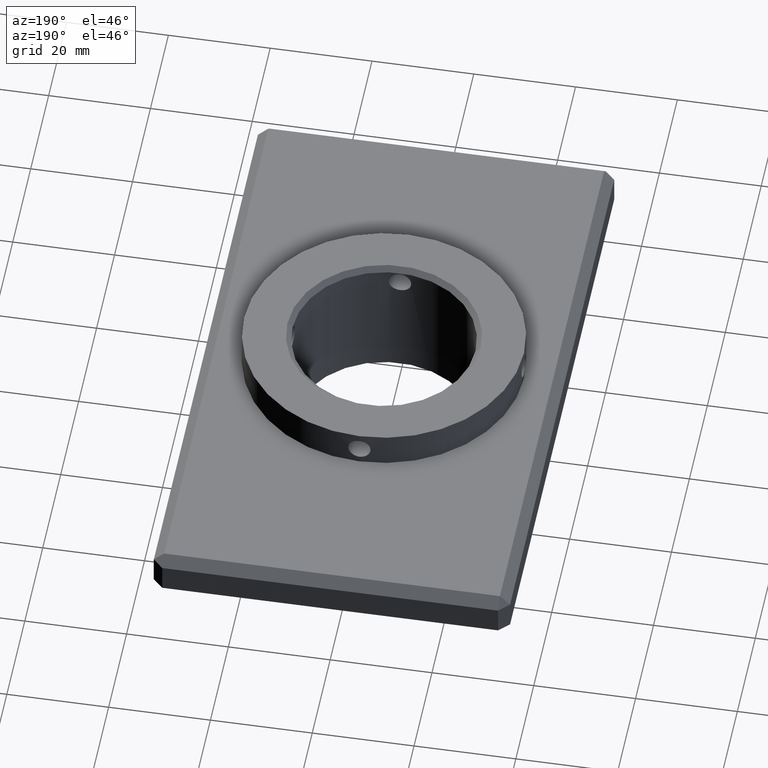
[diagram: clean part render]
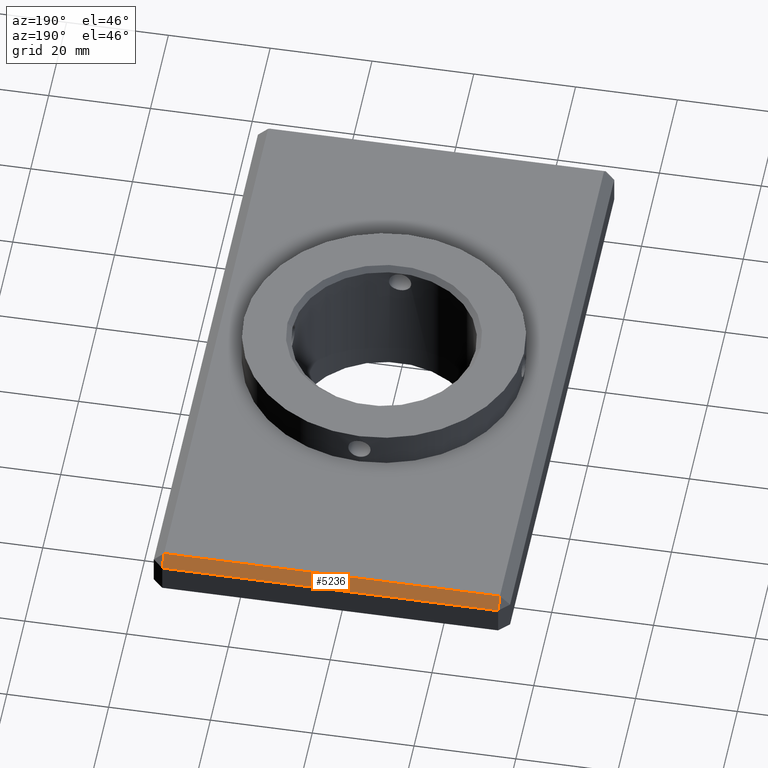
[diagram: same view with one face highlighted and labeled with its STEP entity id]
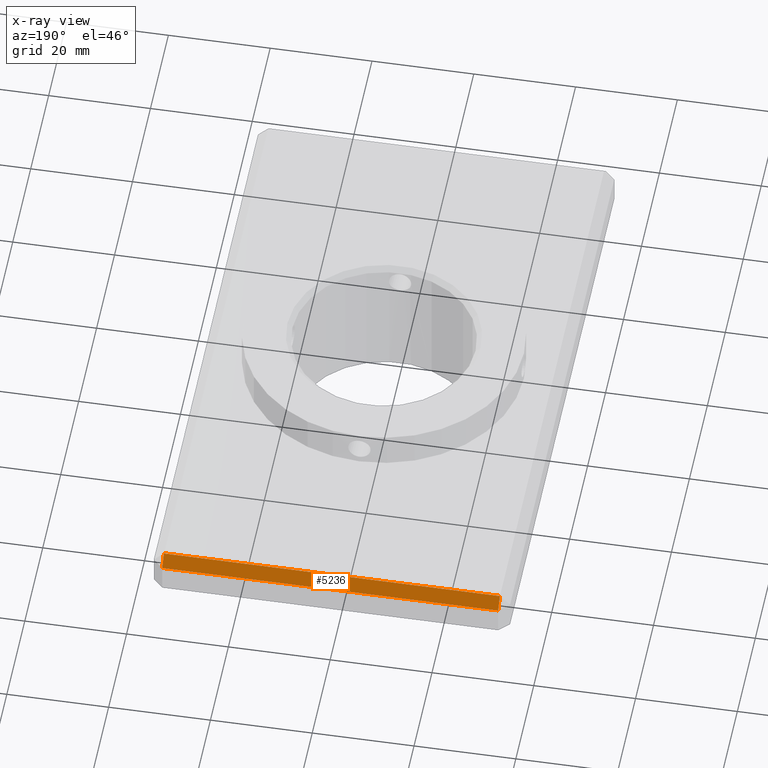
[diagram: x-ray of the same camera — body ghosted, the highlighted face saturated]
A machine part, auxiliary view. The second image highlights one B-rep face of the part: STEP entity #5236.
The next image is the same camera in x-ray: the body ghosted, the highlighted face saturated — about 0% of this face is hidden behind the body in this view.
In plain terms, the highlighted planar face has unit normal (0, 0.7071, 0.7071).
Its self-contained STEP definition (entity closure, byte-faithful):
#94 = CARTESIAN_POINT ( 'NONE',  ( -32.99999999999998579, 60.00000000000000711, 3.999999999999975131 ) ) ;
#735 = VERTEX_POINT ( 'NONE', #5770 ) ;
#923 = CARTESIAN_POINT ( 'NONE',  ( -32.99999999999998579, 57.99999999999998579, 6.000000000000009770 ) ) ;
#1272 = VECTOR ( 'NONE', #14894, 1000.000000000000114 ) ;
#1446 = EDGE_CURVE ( 'NONE', #9695, #735, #2633, .T. ) ;
#1704 = VERTEX_POINT ( 'NONE', #923 ) ;
#2468 = DIRECTION ( 'NONE',  ( -1.000000000000000000, 1.982541115402064863E-16, -3.725757332891974876E-32 ) ) ;
#2530 = ORIENTED_EDGE ( 'NONE', *, *, #10014, .T. ) ;
#2633 = LINE ( 'NONE', #12972, #16424 ) ;
#4147 = ORIENTED_EDGE ( 'NONE', *, *, #5828, .F. ) ;
#4206 = VERTEX_POINT ( 'NONE', #6979 ) ;
#4407 = FACE_OUTER_BOUND ( 'NONE', #4781, .T. ) ;
#4415 = ORIENTED_EDGE ( 'NONE', *, *, #1446, .F. ) ;
#4781 = EDGE_LOOP ( 'NONE', ( #2530, #11235, #4147, #4415 ) ) ;
#4943 = CARTESIAN_POINT ( 'NONE',  ( 32.99999999999998579, 58.99999999999999289, 4.999999999999984901 ) ) ;
#5236 = ADVANCED_FACE ( 'NONE', ( #4407 ), #15224, .T. ) ;
#5359 = DIRECTION ( 'NONE',  ( 1.401868266681948091E-16, 0.7071067811865507924, 0.7071067811865442421 ) ) ;
#5770 = CARTESIAN_POINT ( 'NONE',  ( 32.99999999999998579, 59.99999999999999289, 3.999999999999974243 ) ) ;
#5828 = EDGE_CURVE ( 'NONE', #735, #4206, #12376, .T. ) ;
#6979 = CARTESIAN_POINT ( 'NONE',  ( 32.99999999999998579, 57.99999999999997868, 6.000000000000009770 ) ) ;
#8347 = VECTOR ( 'NONE', #15221, 1000.000000000000000 ) ;
#8686 = DIRECTION ( 'NONE',  ( -4.807406715958895489E-16, -0.7071067811865442421, 0.7071067811865507924 ) ) ;
#8894 = CARTESIAN_POINT ( 'NONE',  ( -32.99999999999998579, 60.00000000000000711, 3.999999999999974243 ) ) ;
#9546 = VECTOR ( 'NONE', #8686, 1000.000000000000114 ) ;
#9695 = VERTEX_POINT ( 'NONE', #8894 ) ;
#10014 = EDGE_CURVE ( 'NONE', #9695, #1704, #17113, .T. ) ;
#10120 = DIRECTION ( 'NONE',  ( 1.000000000000000000, -1.982541115402064863E-16, 3.725757332891974329E-32 ) ) ;
#10899 = CARTESIAN_POINT ( 'NONE',  ( -35.00000000000000000, 57.99999999999998579, 6.000000000000009770 ) ) ;
#11235 = ORIENTED_EDGE ( 'NONE', *, *, #17163, .F. ) ;
#12376 = LINE ( 'NONE', #4943, #1272 ) ;
#12972 = CARTESIAN_POINT ( 'NONE',  ( 35.00000000000000000, 59.99999999999999289, 3.999999999999974243 ) ) ;
#13887 = CARTESIAN_POINT ( 'NONE',  ( -35.00000000000000000, 60.00000000000000711, 3.999999999999976019 ) ) ;
#14894 = DIRECTION ( 'NONE',  ( 4.807406715958896475E-16, -0.7071067811865442421, 0.7071067811865507924 ) ) ;
#15031 = LINE ( 'NONE', #10899, #8347 ) ;
#15221 = DIRECTION ( 'NONE',  ( -1.000000000000000000, 1.982541115402064863E-16, -3.725757332891974876E-32 ) ) ;
#15224 = PLANE ( 'NONE',  #16994 ) ;
#16424 = VECTOR ( 'NONE', #10120, 1000.000000000000000 ) ;
#16994 = AXIS2_PLACEMENT_3D ( 'NONE', #13887, #5359, #2468 ) ;
#17113 = LINE ( 'NONE', #94, #9546 ) ;
#17163 = EDGE_CURVE ( 'NONE', #4206, #1704, #15031, .T. ) ;